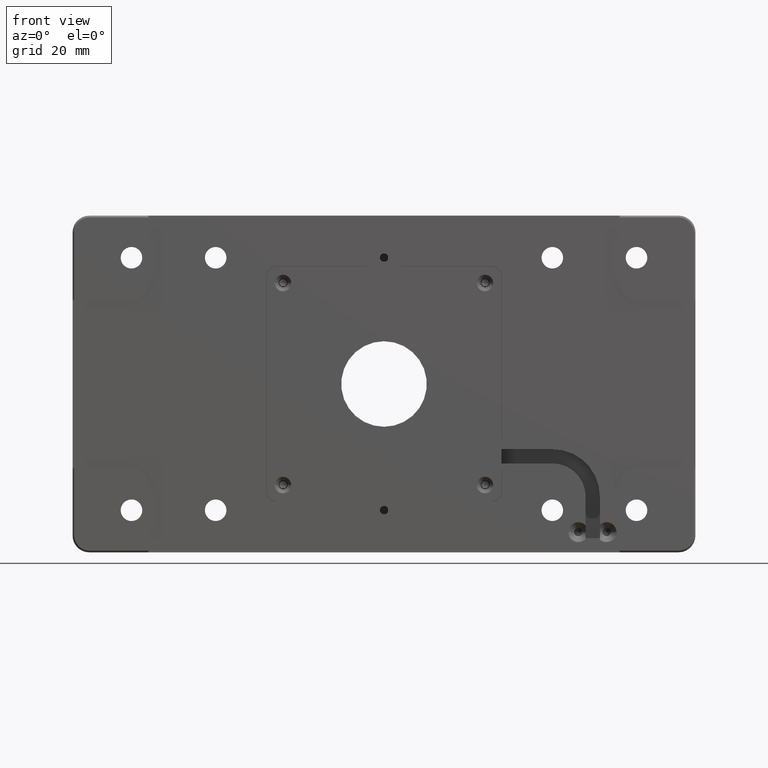
[diagram: clean part render]
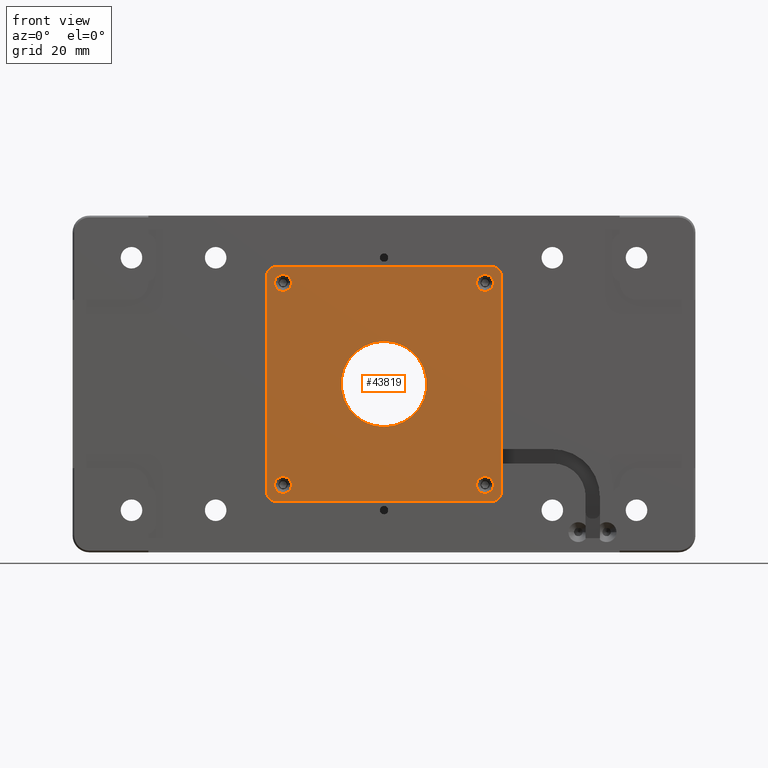
[diagram: same view with one face highlighted and labeled with its STEP entity id]
A machine part, front view. The second image highlights one B-rep face of the part: STEP entity #43819.
In plain terms, the highlighted planar face has unit normal (0, -1, 0).
Its self-contained STEP definition (entity closure, byte-faithful):
#219 = DIRECTION ( 'NONE',  ( -0.0000000000000000000, 1.000000000000000000, -0.0000000000000000000 ) ) ;
#747 = CIRCLE ( 'NONE', #14460, 3.000000000000002700 ) ;
#918 = AXIS2_PLACEMENT_3D ( 'NONE', #43460, #18648, #47556 ) ;
#1585 = FACE_BOUND ( 'NONE', #24660, .T. ) ;
#1895 = AXIS2_PLACEMENT_3D ( 'NONE', #4807, #34139, #9079 ) ;
#2377 = CARTESIAN_POINT ( 'NONE',  ( -1.145512463490891200E-014, -30.00000000000000000, 12.70000000000001400 ) ) ;
#2401 = CARTESIAN_POINT ( 'NONE',  ( -33.17599999999999500, -30.00000000000000000, -34.89999999999999900 ) ) ;
#2752 = DIRECTION ( 'NONE',  ( -1.000000000000000000, 0.0000000000000000000, -0.0000000000000000000 ) ) ;
#2798 = DIRECTION ( 'NONE',  ( -0.0000000000000000000, 1.000000000000000000, -0.0000000000000000000 ) ) ;
#2856 = ORIENTED_EDGE ( 'NONE', *, *, #27403, .T. ) ;
#3366 = ORIENTED_EDGE ( 'NONE', *, *, #39634, .F. ) ;
#3521 = VERTEX_POINT ( 'NONE', #19657 ) ;
#3653 = DIRECTION ( 'NONE',  ( 0.0000000000000000000, 0.0000000000000000000, -1.000000000000000000 ) ) ;
#3829 = CIRCLE ( 'NONE', #41171, 2.500000000000002200 ) ;
#4014 = DIRECTION ( 'NONE',  ( 0.0000000000000000000, 0.0000000000000000000, -1.000000000000000000 ) ) ;
#4246 = VERTEX_POINT ( 'NONE', #46209 ) ;
#4427 = CARTESIAN_POINT ( 'NONE',  ( -34.89999999999999900, -30.00000000000000000, -31.89999999999999900 ) ) ;
#4807 = CARTESIAN_POINT ( 'NONE',  ( 30.00000000000000000, -30.00000000000000000, 30.00000000000000000 ) ) ;
#5621 = CIRCLE ( 'NONE', #16963, 2.500000000000002200 ) ;
#5731 = ORIENTED_EDGE ( 'NONE', *, *, #36021, .T. ) ;
#5735 = CIRCLE ( 'NONE', #918, 2.500000000000002200 ) ;
#6246 = AXIS2_PLACEMENT_3D ( 'NONE', #25409, #219, #29585 ) ;
#6411 = ORIENTED_EDGE ( 'NONE', *, *, #41353, .F. ) ;
#6491 = DIRECTION ( 'NONE',  ( -0.0000000000000000000, 1.000000000000000000, -0.0000000000000000000 ) ) ;
#7424 = EDGE_LOOP ( 'NONE', ( #6411, #33407, #41581, #17311, #8626, #3366, #11178, #19740 ) ) ;
#8087 = LINE ( 'NONE', #45900, #41318 ) ;
#8626 = ORIENTED_EDGE ( 'NONE', *, *, #38374, .F. ) ;
#8666 = CARTESIAN_POINT ( 'NONE',  ( -1.301042606982605300E-014, -30.00000000000000000, 0.0000000000000000000 ) ) ;
#8938 = VERTEX_POINT ( 'NONE', #22317 ) ;
#9079 = DIRECTION ( 'NONE',  ( 0.0000000000000000000, 0.0000000000000000000, -1.000000000000000000 ) ) ;
#9344 = VECTOR ( 'NONE', #39567, 1000.000000000000000 ) ;
#9781 = ORIENTED_EDGE ( 'NONE', *, *, #20588, .T. ) ;
#10133 = AXIS2_PLACEMENT_3D ( 'NONE', #31629, #6491, #35751 ) ;
#10304 = DIRECTION ( 'NONE',  ( -0.0000000000000000000, 1.000000000000000000, -0.0000000000000000000 ) ) ;
#11030 = CIRCLE ( 'NONE', #10133, 2.500000000000002200 ) ;
#11178 = ORIENTED_EDGE ( 'NONE', *, *, #38765, .F. ) ;
#11390 = CIRCLE ( 'NONE', #31210, 3.000000000000002700 ) ;
#11462 = FACE_BOUND ( 'NONE', #15557, .T. ) ;
#11839 = DIRECTION ( 'NONE',  ( -0.0000000000000000000, 1.000000000000000000, -0.0000000000000000000 ) ) ;
#12250 = CARTESIAN_POINT ( 'NONE',  ( -31.89999999999999900, -30.00000000000000000, 34.89999999999999900 ) ) ;
#12603 = DIRECTION ( 'NONE',  ( -0.0000000000000000000, 1.000000000000000000, -0.0000000000000000000 ) ) ;
#12636 = VECTOR ( 'NONE', #29268, 1000.000000000000000 ) ;
#12905 = DIRECTION ( 'NONE',  ( 0.0000000000000000000, 0.0000000000000000000, -1.000000000000000000 ) ) ;
#13054 = CARTESIAN_POINT ( 'NONE',  ( -34.89999999999999900, -30.00000000000000000, 31.89999999999999900 ) ) ;
#13953 = LINE ( 'NONE', #33440, #12636 ) ;
#14158 = EDGE_CURVE ( 'NONE', #36006, #47746, #31257, .T. ) ;
#14460 = AXIS2_PLACEMENT_3D ( 'NONE', #27939, #2798, #32127 ) ;
#14747 = CARTESIAN_POINT ( 'NONE',  ( -36.29599999999999900, -30.00000000000000000, -36.29599999999999900 ) ) ;
#14899 = EDGE_CURVE ( 'NONE', #3521, #43386, #24037, .T. ) ;
#15320 = AXIS2_PLACEMENT_3D ( 'NONE', #8666, #37830, #12905 ) ;
#15557 = EDGE_LOOP ( 'NONE', ( #48011, #31549 ) ) ;
#16924 = DIRECTION ( 'NONE',  ( -0.0000000000000000000, 0.0000000000000000000, 1.000000000000000000 ) ) ;
#16963 = AXIS2_PLACEMENT_3D ( 'NONE', #53722, #29178, #4014 ) ;
#17311 = ORIENTED_EDGE ( 'NONE', *, *, #39298, .F. ) ;
#17390 = CARTESIAN_POINT ( 'NONE',  ( 31.89999999999999900, -30.00000000000000000, 34.89999999999999900 ) ) ;
#18044 = CARTESIAN_POINT ( 'NONE',  ( -31.89999999999999900, -30.00000000000000000, -31.89999999999999900 ) ) ;
#18648 = DIRECTION ( 'NONE',  ( -0.0000000000000000000, 1.000000000000000000, -0.0000000000000000000 ) ) ;
#18843 = DIRECTION ( 'NONE',  ( -0.0000000000000000000, 1.000000000000000000, -0.0000000000000000000 ) ) ;
#19312 = CARTESIAN_POINT ( 'NONE',  ( 34.89999999999999900, -30.00000000000000000, 31.89999999999999900 ) ) ;
#19471 = ORIENTED_EDGE ( 'NONE', *, *, #21384, .T. ) ;
#19657 = CARTESIAN_POINT ( 'NONE',  ( -31.89999999999999900, -30.00000000000000000, -34.89999999999999900 ) ) ;
#19740 = ORIENTED_EDGE ( 'NONE', *, *, #39875, .F. ) ;
#20588 = EDGE_CURVE ( 'NONE', #39511, #43473, #3829, .T. ) ;
#20626 = CIRCLE ( 'NONE', #32945, 3.000000000000002700 ) ;
#20963 = VERTEX_POINT ( 'NONE', #19312 ) ;
#21156 = CARTESIAN_POINT ( 'NONE',  ( 30.00000000000000000, -30.00000000000000000, -27.49999999999999600 ) ) ;
#21384 = EDGE_CURVE ( 'NONE', #46549, #4246, #11030, .T. ) ;
#21678 = EDGE_CURVE ( 'NONE', #8938, #39296, #42263, .T. ) ;
#22298 = DIRECTION ( 'NONE',  ( 0.0000000000000000000, 0.0000000000000000000, -1.000000000000000000 ) ) ;
#22317 = CARTESIAN_POINT ( 'NONE',  ( -30.00000000000000000, -30.00000000000000000, 32.50000000000000000 ) ) ;
#23220 = DIRECTION ( 'NONE',  ( 0.0000000000000000000, -1.000000000000000000, 0.0000000000000000000 ) ) ;
#23714 = CARTESIAN_POINT ( 'NONE',  ( -30.00000000000000000, -30.00000000000000000, 27.50000000000000000 ) ) ;
#23829 = ORIENTED_EDGE ( 'NONE', *, *, #14158, .T. ) ;
#23964 = FACE_BOUND ( 'NONE', #44773, .T. ) ;
#24037 = CIRCLE ( 'NONE', #34781, 3.000000000000002700 ) ;
#24349 = CARTESIAN_POINT ( 'NONE',  ( 34.89999999999999900, -30.00000000000000000, -31.89999999999999900 ) ) ;
#24660 = EDGE_LOOP ( 'NONE', ( #30055, #19471 ) ) ;
#24977 = CARTESIAN_POINT ( 'NONE',  ( -30.00000000000000000, -30.00000000000000000, -30.00000000000000000 ) ) ;
#25409 = CARTESIAN_POINT ( 'NONE',  ( -30.00000000000000000, -30.00000000000000000, 30.00000000000000000 ) ) ;
#26569 = EDGE_CURVE ( 'NONE', #42055, #34566, #36660, .T. ) ;
#27262 = AXIS2_PLACEMENT_3D ( 'NONE', #37541, #12603, #41678 ) ;
#27356 = VERTEX_POINT ( 'NONE', #12250 ) ;
#27403 = EDGE_CURVE ( 'NONE', #39296, #8938, #50266, .T. ) ;
#27939 = CARTESIAN_POINT ( 'NONE',  ( -31.89999999999999900, -30.00000000000000000, 31.89999999999999900 ) ) ;
#28391 = VECTOR ( 'NONE', #2752, 1000.000000000000000 ) ;
#28502 = EDGE_CURVE ( 'NONE', #4246, #46549, #37389, .T. ) ;
#28804 = DIRECTION ( 'NONE',  ( -0.0000000000000000000, 1.000000000000000000, -0.0000000000000000000 ) ) ;
#29152 = DIRECTION ( 'NONE',  ( 0.0000000000000000000, 0.0000000000000000000, -1.000000000000000000 ) ) ;
#29178 = DIRECTION ( 'NONE',  ( -0.0000000000000000000, 1.000000000000000000, -0.0000000000000000000 ) ) ;
#29268 = DIRECTION ( 'NONE',  ( 1.000000000000000000, 0.0000000000000000000, -0.0000000000000000000 ) ) ;
#29585 = DIRECTION ( 'NONE',  ( 0.0000000000000000000, 0.0000000000000000000, -1.000000000000000000 ) ) ;
#29712 = AXIS2_PLACEMENT_3D ( 'NONE', #43640, #18843, #47751 ) ;
#29754 = CARTESIAN_POINT ( 'NONE',  ( -30.00000000000000000, -30.00000000000000000, -27.49999999999999600 ) ) ;
#30055 = ORIENTED_EDGE ( 'NONE', *, *, #28502, .T. ) ;
#31210 = AXIS2_PLACEMENT_3D ( 'NONE', #36809, #11839, #40955 ) ;
#31257 = CIRCLE ( 'NONE', #1895, 2.500000000000002200 ) ;
#31549 = ORIENTED_EDGE ( 'NONE', *, *, #39223, .T. ) ;
#31629 = CARTESIAN_POINT ( 'NONE',  ( 30.00000000000000000, -30.00000000000000000, -30.00000000000000000 ) ) ;
#31638 = LINE ( 'NONE', #47987, #9344 ) ;
#32127 = DIRECTION ( 'NONE',  ( 0.0000000000000000000, 0.0000000000000000000, -1.000000000000000000 ) ) ;
#32518 = VERTEX_POINT ( 'NONE', #46286 ) ;
#32945 = AXIS2_PLACEMENT_3D ( 'NONE', #53369, #28804, #3653 ) ;
#33093 = EDGE_LOOP ( 'NONE', ( #2856, #37766 ) ) ;
#33407 = ORIENTED_EDGE ( 'NONE', *, *, #38913, .F. ) ;
#33440 = CARTESIAN_POINT ( 'NONE',  ( 33.17599999999999500, -30.00000000000000000, 34.89999999999999900 ) ) ;
#33652 = AXIS2_PLACEMENT_3D ( 'NONE', #14747, #23220, #51954 ) ;
#34139 = DIRECTION ( 'NONE',  ( -0.0000000000000000000, 1.000000000000000000, -0.0000000000000000000 ) ) ;
#34566 = VERTEX_POINT ( 'NONE', #2377 ) ;
#34666 = AXIS2_PLACEMENT_3D ( 'NONE', #35320, #10304, #39446 ) ;
#34781 = AXIS2_PLACEMENT_3D ( 'NONE', #18044, #46979, #22298 ) ;
#34992 = FACE_OUTER_BOUND ( 'NONE', #7424, .T. ) ;
#35320 = CARTESIAN_POINT ( 'NONE',  ( -1.301042606982605300E-014, -30.00000000000000000, 0.0000000000000000000 ) ) ;
#35511 = PLANE ( 'NONE',  #33652 ) ;
#35751 = DIRECTION ( 'NONE',  ( 0.0000000000000000000, 0.0000000000000000000, -1.000000000000000000 ) ) ;
#36006 = VERTEX_POINT ( 'NONE', #43098 ) ;
#36021 = EDGE_CURVE ( 'NONE', #43473, #39511, #5735, .T. ) ;
#36331 = ORIENTED_EDGE ( 'NONE', *, *, #42369, .T. ) ;
#36660 = CIRCLE ( 'NONE', #15320, 12.70000000000001400 ) ;
#36809 = CARTESIAN_POINT ( 'NONE',  ( 31.89999999999999900, -30.00000000000000000, -31.89999999999999900 ) ) ;
#37389 = CIRCLE ( 'NONE', #29712, 2.500000000000002200 ) ;
#37541 = CARTESIAN_POINT ( 'NONE',  ( -30.00000000000000000, -30.00000000000000000, 30.00000000000000000 ) ) ;
#37766 = ORIENTED_EDGE ( 'NONE', *, *, #21678, .T. ) ;
#37830 = DIRECTION ( 'NONE',  ( -0.0000000000000000000, 1.000000000000000000, -0.0000000000000000000 ) ) ;
#38374 = EDGE_CURVE ( 'NONE', #46912, #32518, #11390, .T. ) ;
#38765 = EDGE_CURVE ( 'NONE', #47956, #20963, #20626, .T. ) ;
#38913 = EDGE_CURVE ( 'NONE', #43386, #45541, #8087, .T. ) ;
#39223 = EDGE_CURVE ( 'NONE', #34566, #42055, #40654, .T. ) ;
#39296 = VERTEX_POINT ( 'NONE', #23714 ) ;
#39298 = EDGE_CURVE ( 'NONE', #32518, #3521, #39351, .T. ) ;
#39351 = LINE ( 'NONE', #2401, #28391 ) ;
#39446 = DIRECTION ( 'NONE',  ( 0.0000000000000000000, 0.0000000000000000000, -1.000000000000000000 ) ) ;
#39511 = VERTEX_POINT ( 'NONE', #42816 ) ;
#39567 = DIRECTION ( 'NONE',  ( -0.0000000000000000000, 0.0000000000000000000, -1.000000000000000000 ) ) ;
#39634 = EDGE_CURVE ( 'NONE', #20963, #46912, #31638, .T. ) ;
#39875 = EDGE_CURVE ( 'NONE', #27356, #47956, #13953, .T. ) ;
#40296 = CARTESIAN_POINT ( 'NONE',  ( 30.00000000000000000, -30.00000000000000000, 32.50000000000000000 ) ) ;
#40654 = CIRCLE ( 'NONE', #34666, 12.70000000000001400 ) ;
#40955 = DIRECTION ( 'NONE',  ( 0.0000000000000000000, 0.0000000000000000000, -1.000000000000000000 ) ) ;
#41171 = AXIS2_PLACEMENT_3D ( 'NONE', #24977, #53695, #29152 ) ;
#41318 = VECTOR ( 'NONE', #16924, 1000.000000000000000 ) ;
#41353 = EDGE_CURVE ( 'NONE', #45541, #27356, #747, .T. ) ;
#41581 = ORIENTED_EDGE ( 'NONE', *, *, #14899, .F. ) ;
#41678 = DIRECTION ( 'NONE',  ( 0.0000000000000000000, 0.0000000000000000000, -1.000000000000000000 ) ) ;
#41730 = CARTESIAN_POINT ( 'NONE',  ( -1.301042606982605300E-014, -30.00000000000000000, -12.70000000000001400 ) ) ;
#42055 = VERTEX_POINT ( 'NONE', #41730 ) ;
#42263 = CIRCLE ( 'NONE', #6246, 2.499999999999998700 ) ;
#42304 = EDGE_LOOP ( 'NONE', ( #9781, #5731 ) ) ;
#42369 = EDGE_CURVE ( 'NONE', #47746, #36006, #5621, .T. ) ;
#42816 = CARTESIAN_POINT ( 'NONE',  ( -30.00000000000000000, -30.00000000000000000, -32.50000000000000000 ) ) ;
#43098 = CARTESIAN_POINT ( 'NONE',  ( 30.00000000000000000, -30.00000000000000000, 27.49999999999999600 ) ) ;
#43386 = VERTEX_POINT ( 'NONE', #4427 ) ;
#43460 = CARTESIAN_POINT ( 'NONE',  ( -30.00000000000000000, -30.00000000000000000, -30.00000000000000000 ) ) ;
#43473 = VERTEX_POINT ( 'NONE', #29754 ) ;
#43640 = CARTESIAN_POINT ( 'NONE',  ( 30.00000000000000000, -30.00000000000000000, -30.00000000000000000 ) ) ;
#43819 = ADVANCED_FACE ( 'NONE', ( #34992, #44632, #45918, #1585, #23964, #11462 ), #35511, .T. ) ;
#44632 = FACE_BOUND ( 'NONE', #42304, .T. ) ;
#44773 = EDGE_LOOP ( 'NONE', ( #23829, #36331 ) ) ;
#45541 = VERTEX_POINT ( 'NONE', #13054 ) ;
#45900 = CARTESIAN_POINT ( 'NONE',  ( -34.89999999999999900, -30.00000000000000000, 33.17599999999999500 ) ) ;
#45918 = FACE_BOUND ( 'NONE', #33093, .T. ) ;
#46209 = CARTESIAN_POINT ( 'NONE',  ( 30.00000000000000000, -30.00000000000000000, -32.50000000000000000 ) ) ;
#46286 = CARTESIAN_POINT ( 'NONE',  ( 31.89999999999999900, -30.00000000000000000, -34.89999999999999900 ) ) ;
#46549 = VERTEX_POINT ( 'NONE', #21156 ) ;
#46912 = VERTEX_POINT ( 'NONE', #24349 ) ;
#46979 = DIRECTION ( 'NONE',  ( -0.0000000000000000000, 1.000000000000000000, -0.0000000000000000000 ) ) ;
#47556 = DIRECTION ( 'NONE',  ( 0.0000000000000000000, 0.0000000000000000000, -1.000000000000000000 ) ) ;
#47746 = VERTEX_POINT ( 'NONE', #40296 ) ;
#47751 = DIRECTION ( 'NONE',  ( 0.0000000000000000000, 0.0000000000000000000, -1.000000000000000000 ) ) ;
#47956 = VERTEX_POINT ( 'NONE', #17390 ) ;
#47987 = CARTESIAN_POINT ( 'NONE',  ( 34.89999999999999900, -30.00000000000000000, -33.17599999999999500 ) ) ;
#48011 = ORIENTED_EDGE ( 'NONE', *, *, #26569, .T. ) ;
#50266 = CIRCLE ( 'NONE', #27262, 2.499999999999998700 ) ;
#51954 = DIRECTION ( 'NONE',  ( 0.0000000000000000000, -0.0000000000000000000, -1.000000000000000000 ) ) ;
#53369 = CARTESIAN_POINT ( 'NONE',  ( 31.89999999999999900, -30.00000000000000000, 31.89999999999999900 ) ) ;
#53695 = DIRECTION ( 'NONE',  ( -0.0000000000000000000, 1.000000000000000000, -0.0000000000000000000 ) ) ;
#53722 = CARTESIAN_POINT ( 'NONE',  ( 30.00000000000000000, -30.00000000000000000, 30.00000000000000000 ) ) ;